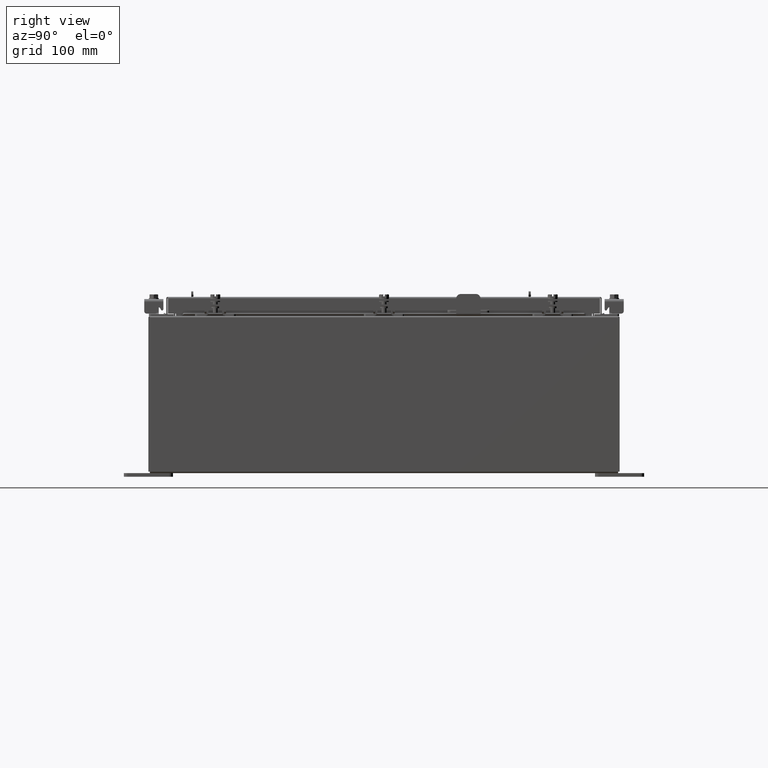
[diagram: clean part render]
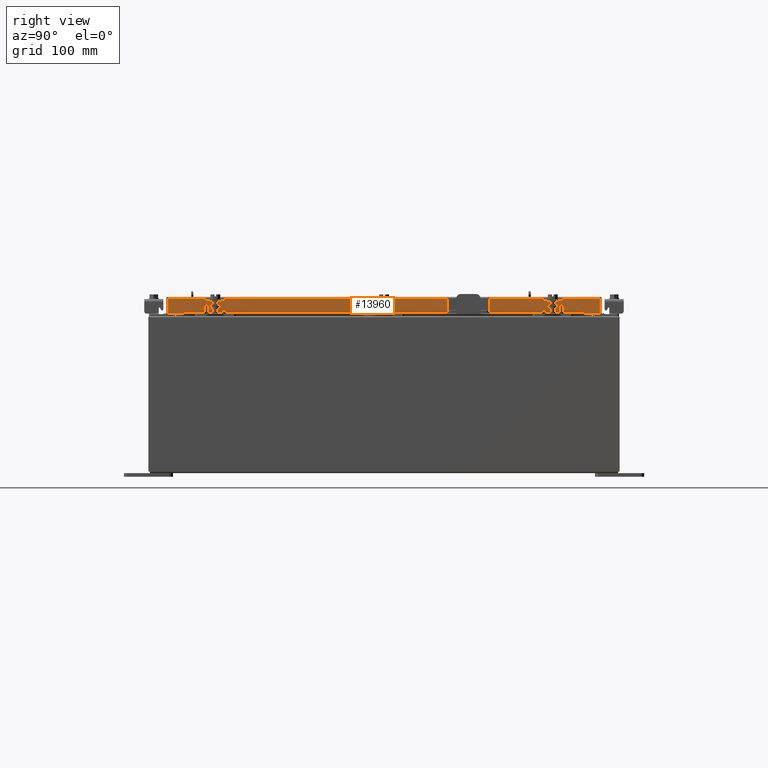
[diagram: same view with one face highlighted and labeled with its STEP entity id]
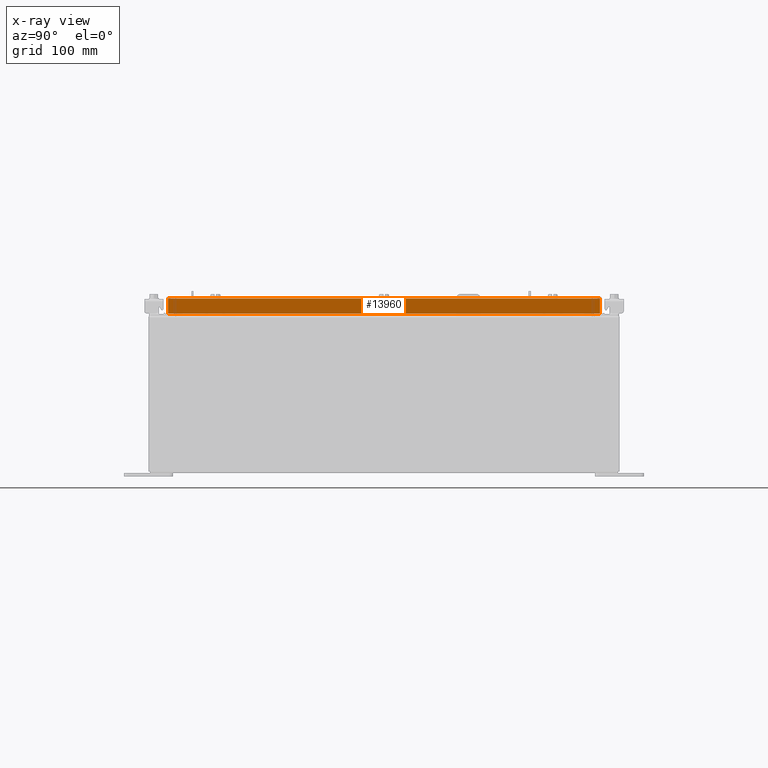
[diagram: x-ray of the same camera — body ghosted, the highlighted face saturated]
A machine part, right view. The second image highlights one B-rep face of the part: STEP entity #13960.
The next image is the same camera in x-ray: the body ghosted, the highlighted face saturated — about 0% of this face is hidden behind the body in this view.
In plain terms, the highlighted planar face has unit normal (1, 0, 0).
Its self-contained STEP definition (entity closure, byte-faithful):
#1112 = ORIENTED_EDGE ( 'NONE', *, *, #21530, .F. ) ;
#1601 = CARTESIAN_POINT ( 'NONE',  ( 11.09399999999999900, -11.00515786437626700, -0.07470000000000015500 ) ) ;
#1605 = VECTOR ( 'NONE', #22545, 39.37007874015748100 ) ;
#1613 = VECTOR ( 'NONE', #6230, 39.37007874015748100 ) ;
#2119 = FACE_OUTER_BOUND ( 'NONE', #2237, .T. ) ;
#2154 = LINE ( 'NONE', #4509, #1613 ) ;
#2237 = EDGE_LOOP ( 'NONE', ( #19429, #1112, #14903, #10833, #18432, #17603 ) ) ;
#3459 = CARTESIAN_POINT ( 'NONE',  ( 11.09399999999999900, 11.00515786437626700, -0.08770000000000026400 ) ) ;
#3576 = VECTOR ( 'NONE', #4890, 39.37007874015748100 ) ;
#4087 = VECTOR ( 'NONE', #17787, 39.37007874015748100 ) ;
#4184 = PLANE ( 'NONE',  #10871 ) ;
#4265 = DIRECTION ( 'NONE',  ( 2.818880942772360100E-015, 0.0000000000000000000, -1.000000000000000000 ) ) ;
#4450 = VERTEX_POINT ( 'NONE', #21025 ) ;
#4504 = DIRECTION ( 'NONE',  ( -2.818880942772360100E-015, -6.982962677686267500E-015, 1.000000000000000000 ) ) ;
#4509 = CARTESIAN_POINT ( 'NONE',  ( 11.09399999999999900, 0.0000000000000000000, -0.08770000000000026400 ) ) ;
#4890 = DIRECTION ( 'NONE',  ( 0.0000000000000000000, -1.000000000000000000, 0.0000000000000000000 ) ) ;
#5131 = LINE ( 'NONE', #9677, #9774 ) ;
#5563 = CARTESIAN_POINT ( 'NONE',  ( 11.09400000000000100, -11.09400000000000100, -0.8499999999999999800 ) ) ;
#6230 = DIRECTION ( 'NONE',  ( 0.0000000000000000000, -1.000000000000000000, 0.0000000000000000000 ) ) ;
#6433 = CARTESIAN_POINT ( 'NONE',  ( 11.09400000000000100, -11.09400000000000100, -0.8499999999999999800 ) ) ;
#7902 = VECTOR ( 'NONE', #8165, 39.37007874015748100 ) ;
#8165 = DIRECTION ( 'NONE',  ( 0.0000000000000000000, -1.000000000000000000, 0.0000000000000000000 ) ) ;
#9381 = EDGE_CURVE ( 'NONE', #9598, #4450, #21776, .T. ) ;
#9598 = VERTEX_POINT ( 'NONE', #18068 ) ;
#9677 = CARTESIAN_POINT ( 'NONE',  ( 11.09399999999999900, 11.00515786437626700, 1.081811805491048200E-013 ) ) ;
#9774 = VECTOR ( 'NONE', #4504, 39.37007874015748100 ) ;
#10833 = ORIENTED_EDGE ( 'NONE', *, *, #21261, .F. ) ;
#10871 = AXIS2_PLACEMENT_3D ( 'NONE', #19891, #14708, #4265 ) ;
#11141 = EDGE_CURVE ( 'NONE', #16736, #16471, #18030, .T. ) ;
#11718 = CARTESIAN_POINT ( 'NONE',  ( 11.09399999999999200, -10.25515786437626400, -0.8500000000000020900 ) ) ;
#11953 = EDGE_CURVE ( 'NONE', #15376, #4450, #2154, .T. ) ;
#12581 = LINE ( 'NONE', #6433, #7902 ) ;
#13960 = ADVANCED_FACE ( 'NONE', ( #2119 ), #4184, .T. ) ;
#14062 = EDGE_CURVE ( 'NONE', #20827, #15376, #5131, .T. ) ;
#14708 = DIRECTION ( 'NONE',  ( 1.000000000000000000, 0.0000000000000000000, 2.818880942772360100E-015 ) ) ;
#14903 = ORIENTED_EDGE ( 'NONE', *, *, #11141, .F. ) ;
#15376 = VERTEX_POINT ( 'NONE', #3459 ) ;
#16471 = VERTEX_POINT ( 'NONE', #11718 ) ;
#16736 = VERTEX_POINT ( 'NONE', #19328 ) ;
#17103 = CARTESIAN_POINT ( 'NONE',  ( 11.09399999999999200, 10.25515786437627200, -0.8500000000000020900 ) ) ;
#17444 = CARTESIAN_POINT ( 'NONE',  ( 11.09400000000000100, 11.00515786437627200, -0.8499999999999999800 ) ) ;
#17493 = LINE ( 'NONE', #5563, #4087 ) ;
#17603 = ORIENTED_EDGE ( 'NONE', *, *, #11953, .T. ) ;
#17787 = DIRECTION ( 'NONE',  ( 0.0000000000000000000, -1.000000000000000000, 0.0000000000000000000 ) ) ;
#18030 = LINE ( 'NONE', #17103, #3576 ) ;
#18068 = CARTESIAN_POINT ( 'NONE',  ( 11.09400000000000100, -11.00515786437626200, -0.8499999999999999800 ) ) ;
#18432 = ORIENTED_EDGE ( 'NONE', *, *, #14062, .T. ) ;
#19328 = CARTESIAN_POINT ( 'NONE',  ( 11.09399999999999200, 10.25515786437627200, -0.8500000000000020900 ) ) ;
#19429 = ORIENTED_EDGE ( 'NONE', *, *, #9381, .F. ) ;
#19891 = CARTESIAN_POINT ( 'NONE',  ( 11.09399999999999900, 0.0000000000000000000, 3.168943672650545400E-014 ) ) ;
#20827 = VERTEX_POINT ( 'NONE', #17444 ) ;
#21025 = CARTESIAN_POINT ( 'NONE',  ( 11.09399999999999900, -11.00515786437626700, -0.08770000000000026400 ) ) ;
#21261 = EDGE_CURVE ( 'NONE', #20827, #16736, #12581, .T. ) ;
#21530 = EDGE_CURVE ( 'NONE', #16471, #9598, #17493, .T. ) ;
#21776 = LINE ( 'NONE', #1601, #1605 ) ;
#22545 = DIRECTION ( 'NONE',  ( -2.818880942772360100E-015, -6.982962677686267500E-015, 1.000000000000000000 ) ) ;